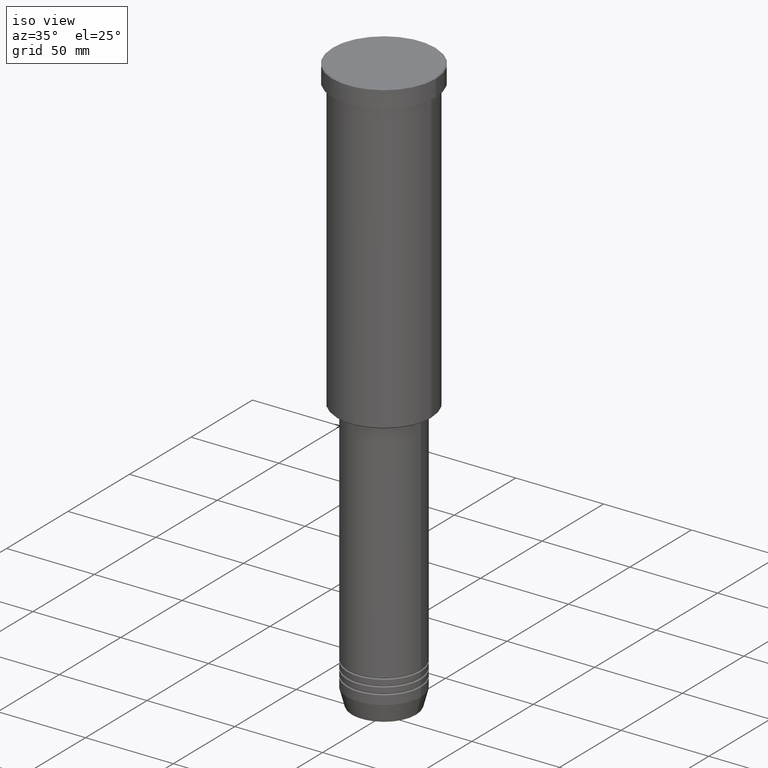
[diagram: clean part render]
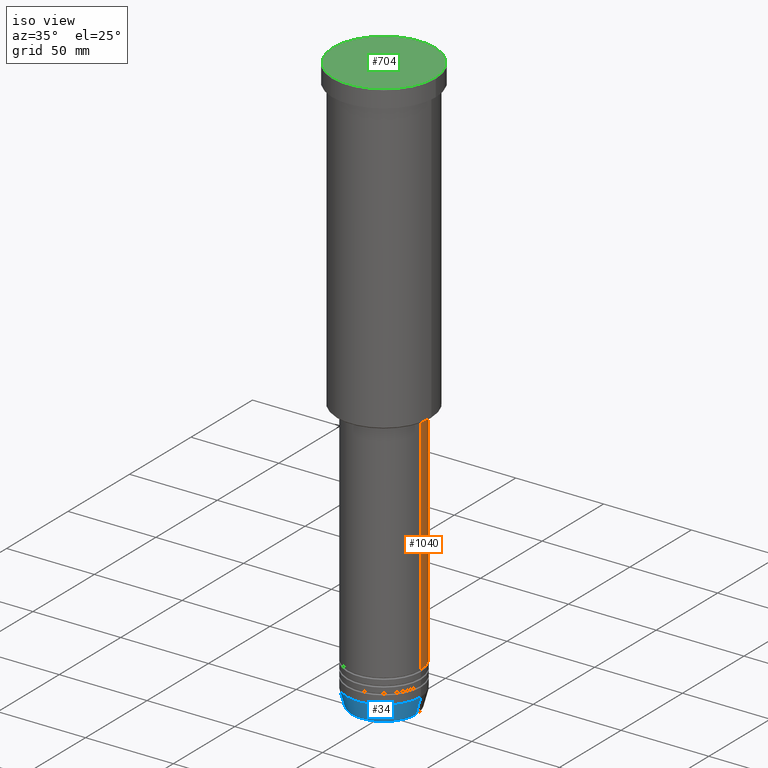
[diagram: same view with three faces highlighted in distinct colors, each labeled with its STEP entity id]
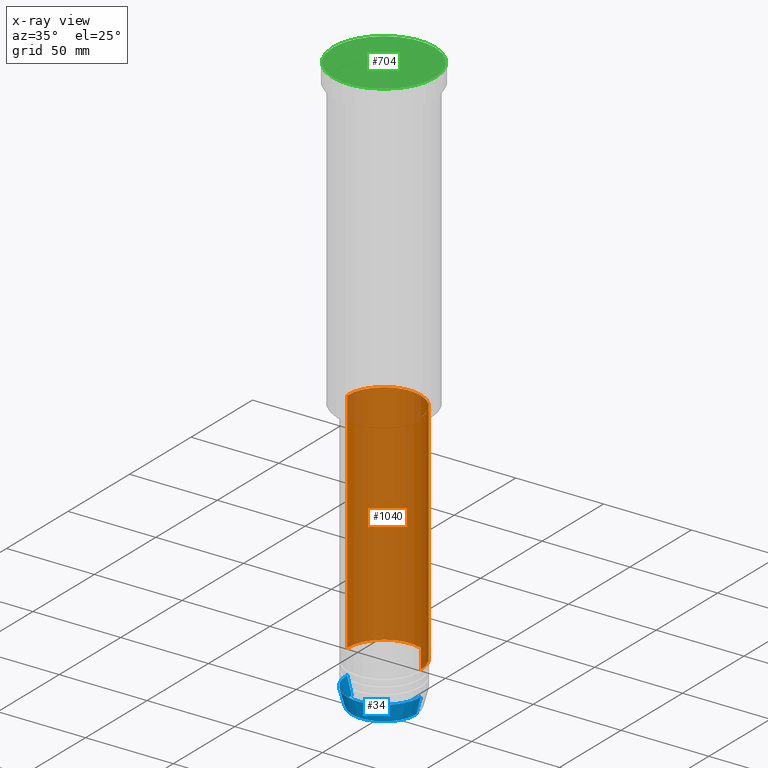
[diagram: x-ray of the same camera — body ghosted, the three highlighted faces saturated]
A machine part, iso view with three faces highlighted in distinct colors.
The next image is the same camera in x-ray (body ghosted, the three faces saturated) — at least one of them is partly hidden behind the body in this view.
Their STEP definitions:

[orange] entity #1040 — the highlighted cylindrical surface (partial cylindrical patch) has radius 21 mm, axis along (-0, -0, 1).
#26 = DIRECTION ( 'NONE',  ( -0.000000000000000000, -0.000000000000000000, 1.000000000000000000 ) ) ;
#102 = CARTESIAN_POINT ( 'NONE',  ( 0.000000000000000000, 0.000000000000000000, 0.000000000000000000 ) ) ;
#112 = VERTEX_POINT ( 'NONE', #484 ) ;
#116 = LINE ( 'NONE', #488, #1018 ) ;
#128 = EDGE_CURVE ( 'NONE', #1165, #639, #861, .T. ) ;
#133 = EDGE_CURVE ( 'NONE', #1165, #112, #116, .T. ) ;
#156 = AXIS2_PLACEMENT_3D ( 'NONE', #1026, #579, #939 ) ;
#223 = DIRECTION ( 'NONE',  ( -0.000000000000000000, -0.000000000000000000, 1.000000000000000000 ) ) ;
#234 = CARTESIAN_POINT ( 'NONE',  ( 0.000000000000000000, 0.000000000000000000, -176.9999999999999432 ) ) ;
#262 = VERTEX_POINT ( 'NONE', #321 ) ;
#295 = DIRECTION ( 'NONE',  ( 1.000000000000000000, 0.000000000000000000, 0.000000000000000000 ) ) ;
#321 = CARTESIAN_POINT ( 'NONE',  ( -20.99999999999999645, 2.571758278209441267E-15, -176.9999999999999432 ) ) ;
#324 = LINE ( 'NONE', #329, #1077 ) ;
#329 = CARTESIAN_POINT ( 'NONE',  ( -20.99999999999999645, 2.571758278209441267E-15, 0.000000000000000000 ) ) ;
#371 = ORIENTED_EDGE ( 'NONE', *, *, #128, .T. ) ;
#388 = EDGE_LOOP ( 'NONE', ( #371, #552, #580, #641 ) ) ;
#474 = CIRCLE ( 'NONE', #846, 20.99999999999999645 ) ;
#484 = CARTESIAN_POINT ( 'NONE',  ( 20.99999999999999645, 0.000000000000000000, -176.9999999999999432 ) ) ;
#487 = DIRECTION ( 'NONE',  ( -0.000000000000000000, -0.000000000000000000, 1.000000000000000000 ) ) ;
#488 = CARTESIAN_POINT ( 'NONE',  ( 20.99999999999999645, 0.000000000000000000, 0.000000000000000000 ) ) ;
#501 = DIRECTION ( 'NONE',  ( -0.000000000000000000, -0.000000000000000000, 1.000000000000000000 ) ) ;
#502 = CARTESIAN_POINT ( 'NONE',  ( 21.00000000000000000, 0.000000000000000000, -306.9999999999999432 ) ) ;
#519 = CARTESIAN_POINT ( 'NONE',  ( -21.00000000000000000, 2.571758278209441661E-15, -306.9999999999999432 ) ) ;
#538 = EDGE_CURVE ( 'NONE', #112, #262, #474, .T. ) ;
#552 = ORIENTED_EDGE ( 'NONE', *, *, #1131, .T. ) ;
#578 = CYLINDRICAL_SURFACE ( 'NONE', #830, 20.99999999999999645 ) ;
#579 = DIRECTION ( 'NONE',  ( -0.000000000000000000, -0.000000000000000000, 1.000000000000000000 ) ) ;
#580 = ORIENTED_EDGE ( 'NONE', *, *, #538, .F. ) ;
#639 = VERTEX_POINT ( 'NONE', #519 ) ;
#641 = ORIENTED_EDGE ( 'NONE', *, *, #133, .F. ) ;
#830 = AXIS2_PLACEMENT_3D ( 'NONE', #102, #487, #295 ) ;
#846 = AXIS2_PLACEMENT_3D ( 'NONE', #234, #501, #959 ) ;
#861 = CIRCLE ( 'NONE', #156, 21.00000000000000000 ) ;
#939 = DIRECTION ( 'NONE',  ( 1.000000000000000000, 0.000000000000000000, 0.000000000000000000 ) ) ;
#959 = DIRECTION ( 'NONE',  ( 1.000000000000000000, 0.000000000000000000, 0.000000000000000000 ) ) ;
#1004 = FACE_OUTER_BOUND ( 'NONE', #388, .T. ) ;
#1018 = VECTOR ( 'NONE', #26, 1000.000000000000000 ) ;
#1026 = CARTESIAN_POINT ( 'NONE',  ( 0.000000000000000000, 0.000000000000000000, -306.9999999999999432 ) ) ;
#1040 = ADVANCED_FACE ( 'NONE', ( #1004 ), #578, .T. ) ;
#1077 = VECTOR ( 'NONE', #223, 1000.000000000000000 ) ;
#1131 = EDGE_CURVE ( 'NONE', #639, #262, #324, .T. ) ;
#1165 = VERTEX_POINT ( 'NONE', #502 ) ;

[blue] entity #34 — the highlighted conical surface has half-angle 15 deg.
#16 = CARTESIAN_POINT ( 'NONE',  ( 21.00000000000000000, 0.000000000000000000, -321.0000000000000000 ) ) ;
#34 = ADVANCED_FACE ( 'NONE', ( #853 ), #473, .T. ) ;
#47 = VECTOR ( 'NONE', #1108, 1000.000000000000114 ) ;
#65 = CARTESIAN_POINT ( 'NONE',  ( 0.000000000000000000, 0.000000000000000000, -330.6294095225512706 ) ) ;
#123 = VERTEX_POINT ( 'NONE', #665 ) ;
#131 = DIRECTION ( 'NONE',  ( -0.000000000000000000, -0.000000000000000000, 1.000000000000000000 ) ) ;
#217 = CIRCLE ( 'NONE', #878, 18.41980749484383750 ) ;
#240 = EDGE_CURVE ( 'NONE', #349, #890, #217, .T. ) ;
#242 = DIRECTION ( 'NONE',  ( -0.000000000000000000, -0.000000000000000000, 1.000000000000000000 ) ) ;
#243 = ORIENTED_EDGE ( 'NONE', *, *, #973, .T. ) ;
#269 = EDGE_LOOP ( 'NONE', ( #680, #805, #243, #436 ) ) ;
#348 = CARTESIAN_POINT ( 'NONE',  ( 0.000000000000000000, 0.000000000000000000, -321.0000000000000000 ) ) ;
#349 = VERTEX_POINT ( 'NONE', #1092 ) ;
#354 = VECTOR ( 'NONE', #411, 1000.000000000000114 ) ;
#362 = CARTESIAN_POINT ( 'NONE',  ( 18.41980749484383750, 0.000000000000000000, -330.6294095225512706 ) ) ;
#411 = DIRECTION ( 'NONE',  ( -0.2588190451025211836, 3.169619151431770488E-17, 0.9659258262890680902 ) ) ;
#436 = ORIENTED_EDGE ( 'NONE', *, *, #954, .F. ) ;
#473 = CONICAL_SURFACE ( 'NONE', #1054, 21.00000000000000000, 0.2617993877991499074 ) ;
#478 = CIRCLE ( 'NONE', #1038, 21.00000000000000000 ) ;
#497 = CARTESIAN_POINT ( 'NONE',  ( -21.00000000000000000, 2.571758278209441661E-15, -321.0000000000000000 ) ) ;
#620 = DIRECTION ( 'NONE',  ( -0.000000000000000000, -0.000000000000000000, 1.000000000000000000 ) ) ;
#665 = CARTESIAN_POINT ( 'NONE',  ( -21.00000000000000000, 2.571758278209441661E-15, -321.0000000000000000 ) ) ;
#671 = LINE ( 'NONE', #497, #354 ) ;
#678 = DIRECTION ( 'NONE',  ( 1.000000000000000000, 0.000000000000000000, 0.000000000000000000 ) ) ;
#680 = ORIENTED_EDGE ( 'NONE', *, *, #1144, .F. ) ;
#693 = DIRECTION ( 'NONE',  ( 1.000000000000000000, 0.000000000000000000, 0.000000000000000000 ) ) ;
#805 = ORIENTED_EDGE ( 'NONE', *, *, #240, .T. ) ;
#814 = VERTEX_POINT ( 'NONE', #1074 ) ;
#850 = CARTESIAN_POINT ( 'NONE',  ( 0.000000000000000000, 0.000000000000000000, -321.0000000000000000 ) ) ;
#853 = FACE_OUTER_BOUND ( 'NONE', #269, .T. ) ;
#878 = AXIS2_PLACEMENT_3D ( 'NONE', #65, #620, #693 ) ;
#890 = VERTEX_POINT ( 'NONE', #362 ) ;
#894 = DIRECTION ( 'NONE',  ( 1.000000000000000000, 0.000000000000000000, 0.000000000000000000 ) ) ;
#938 = LINE ( 'NONE', #16, #47 ) ;
#954 = EDGE_CURVE ( 'NONE', #123, #814, #478, .T. ) ;
#973 = EDGE_CURVE ( 'NONE', #890, #814, #938, .T. ) ;
#1038 = AXIS2_PLACEMENT_3D ( 'NONE', #348, #242, #894 ) ;
#1054 = AXIS2_PLACEMENT_3D ( 'NONE', #850, #131, #678 ) ;
#1074 = CARTESIAN_POINT ( 'NONE',  ( 21.00000000000000000, 0.000000000000000000, -321.0000000000000000 ) ) ;
#1092 = CARTESIAN_POINT ( 'NONE',  ( -18.41980749484383750, 2.413767053578267458E-15, -330.6294095225512706 ) ) ;
#1108 = DIRECTION ( 'NONE',  ( 0.2588190451025211836, 0.000000000000000000, 0.9659258262890680902 ) ) ;
#1144 = EDGE_CURVE ( 'NONE', #349, #123, #671, .T. ) ;

[green] entity #704 — the highlighted planar face has unit normal (0, -0, 1).
#31 = CARTESIAN_POINT ( 'NONE',  ( 28.99999999999988631, 3.582091887506000717E-15, 0.000000000000000000 ) ) ;
#169 = CARTESIAN_POINT ( 'NONE',  ( 0.000000000000000000, 0.000000000000000000, 0.000000000000000000 ) ) ;
#180 = AXIS2_PLACEMENT_3D ( 'NONE', #169, #809, #444 ) ;
#280 = EDGE_LOOP ( 'NONE', ( #405, #1087 ) ) ;
#290 = DIRECTION ( 'NONE',  ( -0.000000000000000000, -0.000000000000000000, 1.000000000000000000 ) ) ;
#341 = FACE_OUTER_BOUND ( 'NONE', #280, .T. ) ;
#404 = AXIS2_PLACEMENT_3D ( 'NONE', #667, #290, #1104 ) ;
#405 = ORIENTED_EDGE ( 'NONE', *, *, #1046, .T. ) ;
#432 = PLANE ( 'NONE',  #180 ) ;
#444 = DIRECTION ( 'NONE',  ( 1.000000000000000000, 0.000000000000000000, 0.000000000000000000 ) ) ;
#645 = CIRCLE ( 'NONE', #404, 28.99999999999988631 ) ;
#667 = CARTESIAN_POINT ( 'NONE',  ( 0.000000000000000000, 0.000000000000000000, 0.000000000000000000 ) ) ;
#704 = ADVANCED_FACE ( 'NONE', ( #341 ), #432, .T. ) ;
#708 = CARTESIAN_POINT ( 'NONE',  ( -28.99999999999988631, 0.000000000000000000, 0.000000000000000000 ) ) ;
#744 = DIRECTION ( 'NONE',  ( -0.000000000000000000, -0.000000000000000000, 1.000000000000000000 ) ) ;
#745 = VERTEX_POINT ( 'NONE', #708 ) ;
#809 = DIRECTION ( 'NONE',  ( 0.000000000000000000, -0.000000000000000000, 1.000000000000000000 ) ) ;
#838 = DIRECTION ( 'NONE',  ( 1.000000000000000000, 0.000000000000000000, 0.000000000000000000 ) ) ;
#842 = CARTESIAN_POINT ( 'NONE',  ( 0.000000000000000000, 0.000000000000000000, 0.000000000000000000 ) ) ;
#947 = CIRCLE ( 'NONE', #1122, 28.99999999999988631 ) ;
#988 = EDGE_CURVE ( 'NONE', #1161, #745, #645, .T. ) ;
#1046 = EDGE_CURVE ( 'NONE', #745, #1161, #947, .T. ) ;
#1087 = ORIENTED_EDGE ( 'NONE', *, *, #988, .T. ) ;
#1104 = DIRECTION ( 'NONE',  ( 1.000000000000000000, 0.000000000000000000, 0.000000000000000000 ) ) ;
#1122 = AXIS2_PLACEMENT_3D ( 'NONE', #842, #744, #838 ) ;
#1161 = VERTEX_POINT ( 'NONE', #31 ) ;